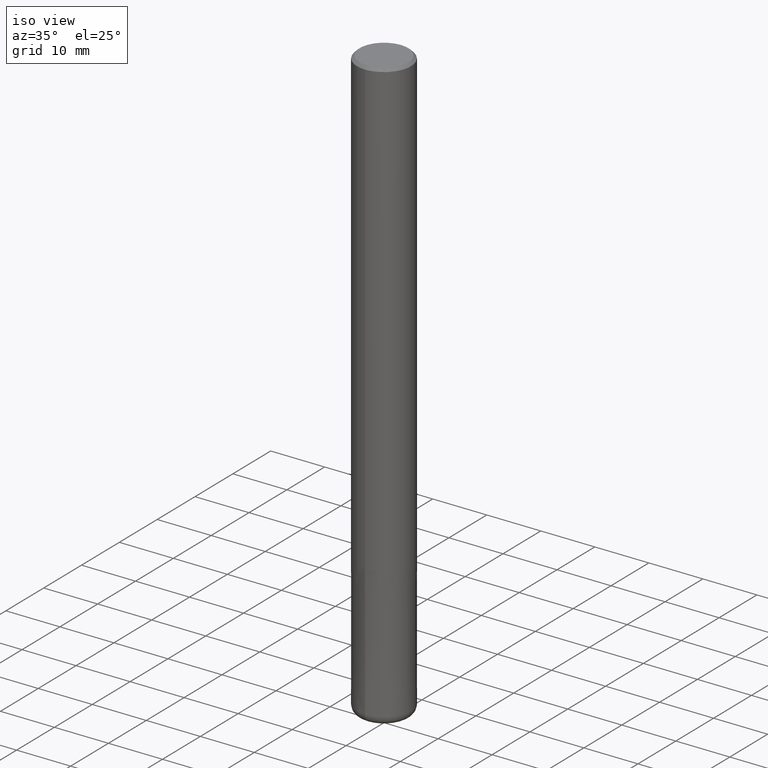
[diagram: clean part render]
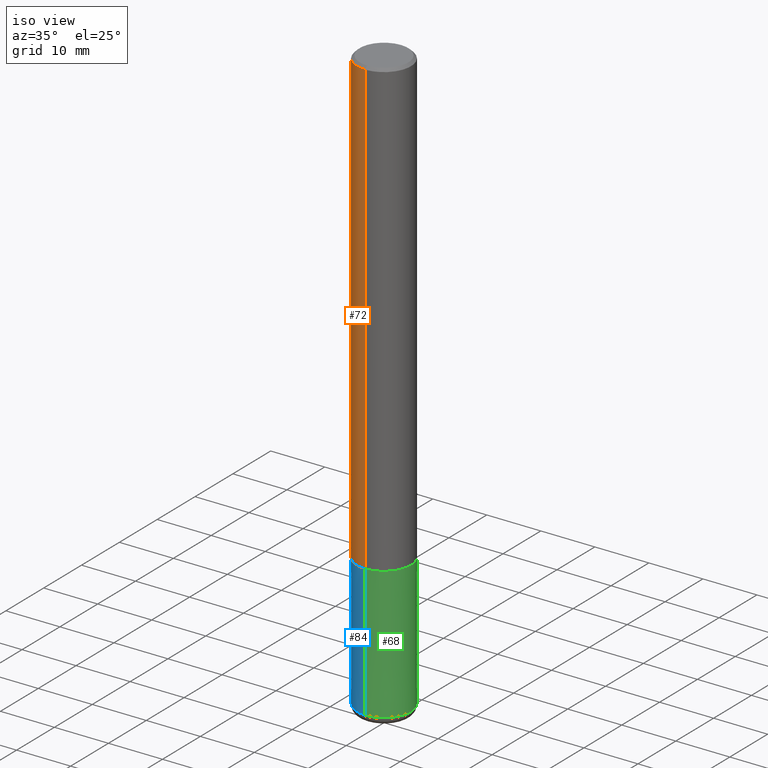
[diagram: same view with three faces highlighted in distinct colors, each labeled with its STEP entity id]
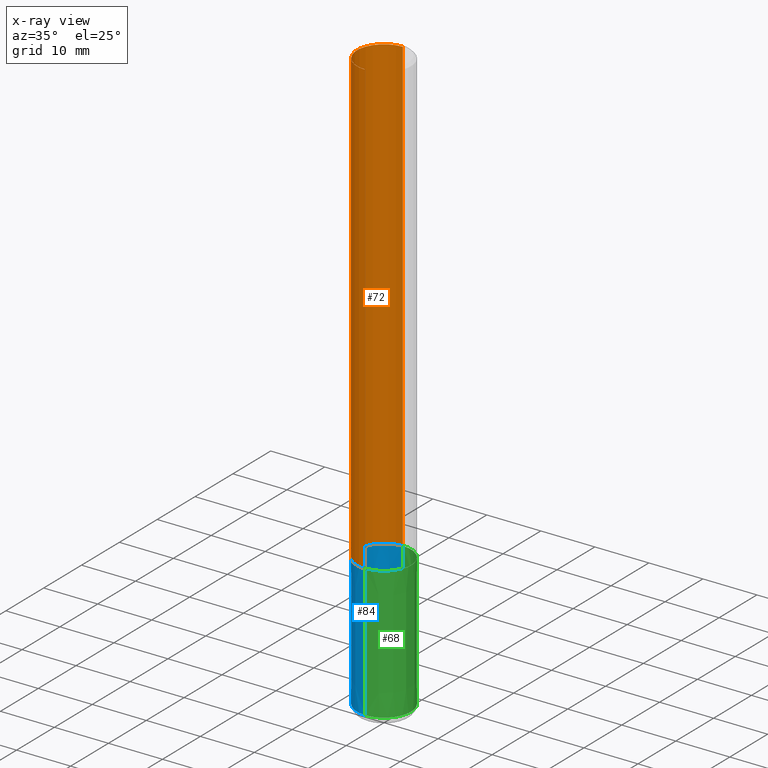
[diagram: x-ray of the same camera — body ghosted, the three highlighted faces saturated]
A machine part, iso view with three faces highlighted in distinct colors.
The next image is the same camera in x-ray (body ghosted, the three faces saturated) — at least one of them is partly hidden behind the body in this view.
Their STEP definitions:

[orange] entity #72 — the highlighted cylindrical surface (edge-blend (fillet) strip) has radius 5 mm, axis along (-0, -0, 1).
#72=ADVANCED_FACE('',(#179),#180,.T.);
#76=VERTEX_POINT('',#184);
#78=VERTEX_POINT('',#186);
#106=VERTEX_POINT('',#221);
#110=EDGE_CURVE('',#106,#146,#225,.T.);
#134=EDGE_CURVE('',#106,#78,#249,.T.);
#142=EDGE_CURVE('',#146,#76,#257,.T.);
#146=VERTEX_POINT('',#262);
#152=EDGE_CURVE('',#76,#78,#268,.T.);
#179=FACE_OUTER_BOUND('',#285,.T.);
#180=CYLINDRICAL_SURFACE('',#286,5.0);
#184=CARTESIAN_POINT('',(0.0,5.0,-0.5));
#186=CARTESIAN_POINT('',(0.0,5.0,-84.0));
#221=CARTESIAN_POINT('',(6.12303176911189E-016,-5.0,-84.0));
#225=LINE('',#338,#339);
#249=CIRCLE('',#373,5.0);
#257=CIRCLE('',#383,5.0);
#262=CARTESIAN_POINT('',(6.12303176911189E-016,-5.0,-0.5));
#268=LINE('',#397,#398);
#285=EDGE_LOOP('',(#420,#421,#422,#423));
#286=AXIS2_PLACEMENT_3D('',#424,#425,#426);
#338=CARTESIAN_POINT('',(6.12303176911189E-016,-5.0,-42.25));
#339=VECTOR('',#496,1.0);
#373=AXIS2_PLACEMENT_3D('',#509,#510,#511);
#383=AXIS2_PLACEMENT_3D('',#515,#516,#517);
#397=CARTESIAN_POINT('',(-6.12303176911189E-016,5.0,-42.25));
#398=VECTOR('',#532,1.0);
#420=ORIENTED_EDGE('',*,*,#152,.T.);
#421=ORIENTED_EDGE('',*,*,#134,.F.);
#422=ORIENTED_EDGE('',*,*,#110,.T.);
#423=ORIENTED_EDGE('',*,*,#142,.T.);
#424=CARTESIAN_POINT('',(0.0,0.0,-42.25));
#425=DIRECTION('',(-0.0,-0.0,1.0));
#426=DIRECTION('',(0.0,1.0,0.0));
#496=DIRECTION('',(-0.0,-0.0,1.0));
#509=CARTESIAN_POINT('',(0.0,0.0,-84.0));
#510=DIRECTION('',(0.0,0.0,-1.0));
#511=DIRECTION('',(0.0,1.0,0.0));
#515=CARTESIAN_POINT('',(0.0,0.0,-0.5));
#516=DIRECTION('',(0.0,0.0,-1.0));
#517=DIRECTION('',(0.0,1.0,0.0));
#532=DIRECTION('',(0.0,0.0,-1.0));

[blue] entity #84 — the highlighted conical surface has half-angle 0 deg.
#84=ADVANCED_FACE('',(#192),#193,.T.);
#102=EDGE_CURVE('',#122,#124,#216,.T.);
#112=EDGE_CURVE('',#118,#138,#227,.T.);
#118=VERTEX_POINT('',#233);
#122=VERTEX_POINT('',#237);
#124=VERTEX_POINT('',#239);
#130=EDGE_CURVE('',#122,#138,#245,.T.);
#138=VERTEX_POINT('',#253);
#150=EDGE_CURVE('',#124,#118,#266,.T.);
#192=FACE_OUTER_BOUND('',#299,.T.);
#193=CONICAL_SURFACE('',#300,4.99995,4.08163265302905E-006);
#216=LINE('',#326,#327);
#227=LINE('',#342,#343);
#233=CARTESIAN_POINT('',(0.0,4.9999,-84.0));
#237=CARTESIAN_POINT('',(6.12303176911189E-016,-5.0,-108.5));
#239=CARTESIAN_POINT('',(6.1229093084765E-016,-4.9999,-84.0));
#245=CIRCLE('',#367,5.0);
#253=CARTESIAN_POINT('',(0.0,5.0,-108.5));
#266=CIRCLE('',#394,4.9999);
#299=EDGE_LOOP('',(#435,#436,#437,#438));
#300=AXIS2_PLACEMENT_3D('',#439,#440,#441);
#326=CARTESIAN_POINT('',(6.12297053879419E-016,-4.99995,-96.25));
#327=VECTOR('',#486,1.0);
#342=CARTESIAN_POINT('',(-6.12297053879419E-016,4.99995,-96.25));
#343=VECTOR('',#497,1.0);
#367=AXIS2_PLACEMENT_3D('',#503,#504,#505);
#394=AXIS2_PLACEMENT_3D('',#529,#530,#531);
#435=ORIENTED_EDGE('',*,*,#112,.T.);
#436=ORIENTED_EDGE('',*,*,#130,.F.);
#437=ORIENTED_EDGE('',*,*,#102,.T.);
#438=ORIENTED_EDGE('',*,*,#150,.T.);
#439=CARTESIAN_POINT('',(0.0,0.0,-96.25));
#440=DIRECTION('',(0.0,-0.0,-1.0));
#441=DIRECTION('',(0.0,1.0,0.0));
#486=DIRECTION('',(-4.99839328085438E-022,4.08163265301771E-006,0.99999999999167));
#497=DIRECTION('',(-4.99839328085438E-022,4.08163265301771E-006,-0.99999999999167));
#503=CARTESIAN_POINT('',(0.0,0.0,-108.5));
#504=DIRECTION('',(0.0,0.0,-1.0));
#505=DIRECTION('',(0.0,1.0,0.0));
#529=CARTESIAN_POINT('',(0.0,0.0,-84.0));
#530=DIRECTION('',(0.0,0.0,-1.0));
#531=DIRECTION('',(0.0,1.0,0.0));

[green] entity #68 — the highlighted conical surface has half-angle 0 deg.
#68=ADVANCED_FACE('',(#172),#173,.T.);
#74=EDGE_CURVE('',#138,#122,#182,.T.);
#80=EDGE_CURVE('',#118,#124,#188,.T.);
#102=EDGE_CURVE('',#122,#124,#216,.T.);
#112=EDGE_CURVE('',#118,#138,#227,.T.);
#118=VERTEX_POINT('',#233);
#122=VERTEX_POINT('',#237);
#124=VERTEX_POINT('',#239);
#138=VERTEX_POINT('',#253);
#172=FACE_OUTER_BOUND('',#278,.T.);
#173=CONICAL_SURFACE('',#279,4.99995,4.08163265302905E-006);
#182=CIRCLE('',#289,5.0);
#188=CIRCLE('',#296,4.9999);
#216=LINE('',#326,#327);
#227=LINE('',#342,#343);
#233=CARTESIAN_POINT('',(0.0,4.9999,-84.0));
#237=CARTESIAN_POINT('',(6.12303176911189E-016,-5.0,-108.5));
#239=CARTESIAN_POINT('',(6.1229093084765E-016,-4.9999,-84.0));
#253=CARTESIAN_POINT('',(0.0,5.0,-108.5));
#278=EDGE_LOOP('',(#404,#405,#406,#407));
#279=AXIS2_PLACEMENT_3D('',#408,#409,#410);
#289=AXIS2_PLACEMENT_3D('',#427,#428,#429);
#296=AXIS2_PLACEMENT_3D('',#430,#431,#432);
#326=CARTESIAN_POINT('',(6.12297053879419E-016,-4.99995,-96.25));
#327=VECTOR('',#486,1.0);
#342=CARTESIAN_POINT('',(-6.12297053879419E-016,4.99995,-96.25));
#343=VECTOR('',#497,1.0);
#404=ORIENTED_EDGE('',*,*,#112,.F.);
#405=ORIENTED_EDGE('',*,*,#80,.T.);
#406=ORIENTED_EDGE('',*,*,#102,.F.);
#407=ORIENTED_EDGE('',*,*,#74,.F.);
#408=CARTESIAN_POINT('',(0.0,0.0,-96.25));
#409=DIRECTION('',(0.0,-0.0,-1.0));
#410=DIRECTION('',(0.0,1.0,0.0));
#427=CARTESIAN_POINT('',(0.0,0.0,-108.5));
#428=DIRECTION('',(0.0,0.0,-1.0));
#429=DIRECTION('',(0.0,1.0,0.0));
#430=CARTESIAN_POINT('',(0.0,0.0,-84.0));
#431=DIRECTION('',(0.0,0.0,-1.0));
#432=DIRECTION('',(0.0,1.0,0.0));
#486=DIRECTION('',(-4.99839328085438E-022,4.08163265301771E-006,0.99999999999167));
#497=DIRECTION('',(-4.99839328085438E-022,4.08163265301771E-006,-0.99999999999167));